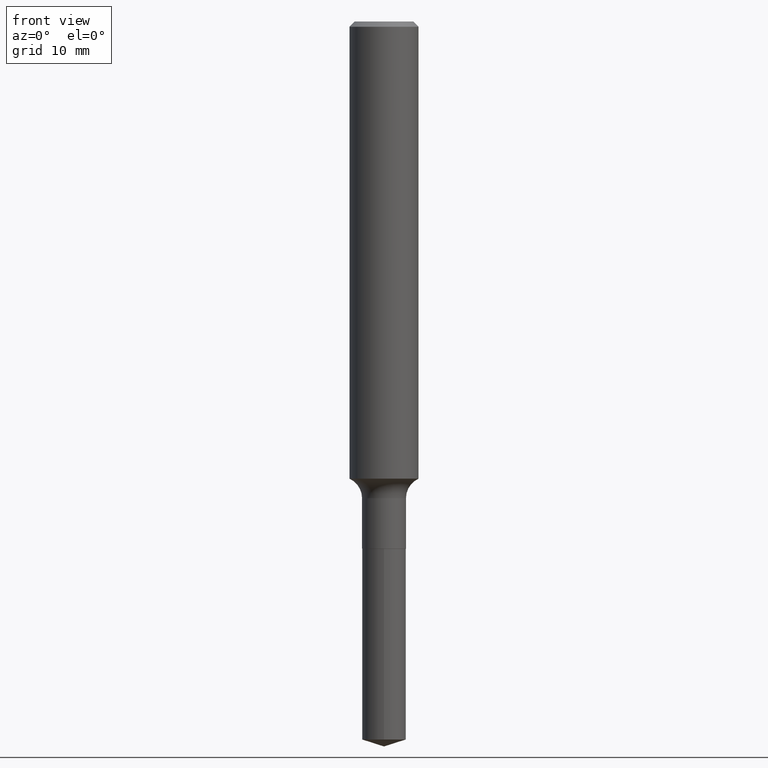
[diagram: clean part render]
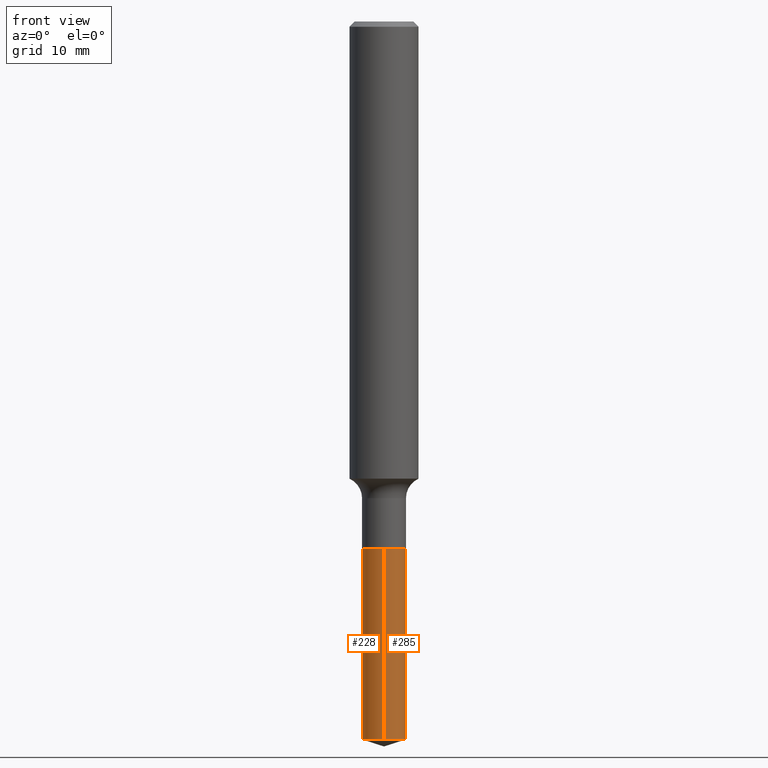
[diagram: same view with one multi-face feature highlighted, each face labeled with its STEP entity id]
A machine part, front view. The highlighted faces form ONE feature: a constant-radius fillet chain: 2 tangent blend faces with common blend radius 2.0193 mm. The faces share edges in the B-rep.
Their STEP definitions:
[1] entity #228 (Cylinder):
#10 = CIRCLE ( 'NONE', #396, 0.07950000000000000122 ) ;
#35 = LINE ( 'NONE', #180, #328 ) ;
#52 = VERTEX_POINT ( 'NONE', #106 ) ;
#61 = ORIENTED_EDGE ( 'NONE', *, *, #439, .T. ) ;
#101 = VERTEX_POINT ( 'NONE', #124 ) ;
#106 = CARTESIAN_POINT ( 'NONE',  ( -5.551455328760114122E-16, -0.07950000000000666256, -1.908999999999999808 ) ) ;
#124 = CARTESIAN_POINT ( 'NONE',  ( 5.648814749293430611E-16, 0.07949999999999091127, -2.599933746284121217 ) ) ;
#137 = VECTOR ( 'NONE', #311, 39.37007874015748143 ) ;
#160 = CARTESIAN_POINT ( 'NONE',  ( 5.648814749293261992E-16, 0.07949999999999333988, -1.909000000000000252 ) ) ;
#163 = EDGE_CURVE ( 'NONE', #101, #467, #345, .T. ) ;
#180 = CARTESIAN_POINT ( 'NONE',  ( -5.551455328760114122E-16, -0.07950000000000666256, -1.908999999999999808 ) ) ;
#210 = CARTESIAN_POINT ( 'NONE',  ( 6.358004696321542877E-29, -9.077694879767091287E-15, -2.599933746284120328 ) ) ;
#222 = ORIENTED_EDGE ( 'NONE', *, *, #344, .T. ) ;
#228 = ADVANCED_FACE ( 'NONE', ( #277 ), #426, .T. ) ;
#243 = DIRECTION ( 'NONE',  ( -2.445393287563249425E-29, 3.491589485807941180E-15, 1.000000000000000000 ) ) ;
#244 = DIRECTION ( 'NONE',  ( -2.445393287563249425E-29, 3.491589485807941180E-15, 1.000000000000000000 ) ) ;
#265 = ORIENTED_EDGE ( 'NONE', *, *, #293, .F. ) ;
#277 = FACE_OUTER_BOUND ( 'NONE', #446, .T. ) ;
#293 = EDGE_CURVE ( 'NONE', #467, #52, #10, .T. ) ;
#307 = DIRECTION ( 'NONE',  ( -2.445393287563249425E-29, 3.491589485807941180E-15, 1.000000000000000000 ) ) ;
#311 = DIRECTION ( 'NONE',  ( -2.445393287563249425E-29, 3.491589485807941180E-15, 1.000000000000000000 ) ) ;
#327 = DIRECTION ( 'NONE',  ( -6.982962677686265922E-15, -1.000000000000000000, 3.436286784483350005E-15 ) ) ;
#328 = VECTOR ( 'NONE', #411, 39.37007874015748143 ) ;
#344 = EDGE_CURVE ( 'NONE', #101, #359, #461, .T. ) ;
#345 = LINE ( 'NONE', #160, #137 ) ;
#359 = VERTEX_POINT ( 'NONE', #466 ) ;
#375 = CARTESIAN_POINT ( 'NONE',  ( 4.668399951007425925E-29, -6.665237875851565683E-15, -1.909000000000000030 ) ) ;
#380 = AXIS2_PLACEMENT_3D ( 'NONE', #375, #307, #418 ) ;
#389 = DIRECTION ( 'NONE',  ( -6.982962677686265922E-15, -1.000000000000000000, 6.872573568966700010E-15 ) ) ;
#393 = CARTESIAN_POINT ( 'NONE',  ( 4.668399951007425925E-29, -6.665237875851565683E-15, -1.909000000000000030 ) ) ;
#396 = AXIS2_PLACEMENT_3D ( 'NONE', #393, #244, #327 ) ;
#398 = ORIENTED_EDGE ( 'NONE', *, *, #163, .F. ) ;
#403 = CARTESIAN_POINT ( 'NONE',  ( 5.648814749293433570E-16, 0.07949999999999333988, -1.909000000000000252 ) ) ;
#411 = DIRECTION ( 'NONE',  ( -2.445393287563249425E-29, 3.491589485807941180E-15, 1.000000000000000000 ) ) ;
#418 = DIRECTION ( 'NONE',  ( -6.982962677686265922E-15, -1.000000000000000000, 3.436286784483350005E-15 ) ) ;
#426 = CYLINDRICAL_SURFACE ( 'NONE', #380, 0.07950000000000000122 ) ;
#439 = EDGE_CURVE ( 'NONE', #359, #52, #35, .T. ) ;
#446 = EDGE_LOOP ( 'NONE', ( #398, #222, #61, #265 ) ) ;
#461 = CIRCLE ( 'NONE', #477, 0.07950000000000000122 ) ;
#466 = CARTESIAN_POINT ( 'NONE',  ( -5.551455328759945503E-16, -0.07950000000000907729, -2.599933746284119884 ) ) ;
#467 = VERTEX_POINT ( 'NONE', #403 ) ;
#477 = AXIS2_PLACEMENT_3D ( 'NONE', #210, #243, #389 ) ;
[2] entity #285 (Cylinder):
#26 = EDGE_LOOP ( 'NONE', ( #430, #216, #320, #37 ) ) ;
#35 = LINE ( 'NONE', #180, #328 ) ;
#37 = ORIENTED_EDGE ( 'NONE', *, *, #439, .F. ) ;
#52 = VERTEX_POINT ( 'NONE', #106 ) ;
#60 = FACE_OUTER_BOUND ( 'NONE', #26, .T. ) ;
#88 = AXIS2_PLACEMENT_3D ( 'NONE', #131, #246, #90 ) ;
#90 = DIRECTION ( 'NONE',  ( -6.982962677686265922E-15, -1.000000000000000000, 3.436286784483350005E-15 ) ) ;
#101 = VERTEX_POINT ( 'NONE', #124 ) ;
#106 = CARTESIAN_POINT ( 'NONE',  ( -5.551455328760114122E-16, -0.07950000000000666256, -1.908999999999999808 ) ) ;
#123 = CIRCLE ( 'NONE', #234, 0.07950000000000000122 ) ;
#124 = CARTESIAN_POINT ( 'NONE',  ( 5.648814749293430611E-16, 0.07949999999999091127, -2.599933746284121217 ) ) ;
#125 = DIRECTION ( 'NONE',  ( -2.445393287563249425E-29, 3.491589485807941180E-15, 1.000000000000000000 ) ) ;
#131 = CARTESIAN_POINT ( 'NONE',  ( 4.668399951007425925E-29, -6.665237875851565683E-15, -1.909000000000000030 ) ) ;
#137 = VECTOR ( 'NONE', #311, 39.37007874015748143 ) ;
#160 = CARTESIAN_POINT ( 'NONE',  ( 5.648814749293261992E-16, 0.07949999999999333988, -1.909000000000000252 ) ) ;
#163 = EDGE_CURVE ( 'NONE', #101, #467, #345, .T. ) ;
#180 = CARTESIAN_POINT ( 'NONE',  ( -5.551455328760114122E-16, -0.07950000000000666256, -1.908999999999999808 ) ) ;
#207 = EDGE_CURVE ( 'NONE', #52, #467, #343, .T. ) ;
#216 = ORIENTED_EDGE ( 'NONE', *, *, #163, .T. ) ;
#234 = AXIS2_PLACEMENT_3D ( 'NONE', #291, #280, #470 ) ;
#246 = DIRECTION ( 'NONE',  ( -2.445393287563249425E-29, 3.491589485807941180E-15, 1.000000000000000000 ) ) ;
#269 = EDGE_CURVE ( 'NONE', #359, #101, #123, .T. ) ;
#275 = CARTESIAN_POINT ( 'NONE',  ( 4.668399951007425925E-29, -6.665237875851565683E-15, -1.909000000000000030 ) ) ;
#280 = DIRECTION ( 'NONE',  ( -2.445393287563249425E-29, 3.491589485807941180E-15, 1.000000000000000000 ) ) ;
#285 = ADVANCED_FACE ( 'NONE', ( #60 ), #399, .T. ) ;
#291 = CARTESIAN_POINT ( 'NONE',  ( 6.358004696321542877E-29, -9.077694879767091287E-15, -2.599933746284120328 ) ) ;
#311 = DIRECTION ( 'NONE',  ( -2.445393287563249425E-29, 3.491589485807941180E-15, 1.000000000000000000 ) ) ;
#317 = AXIS2_PLACEMENT_3D ( 'NONE', #275, #125, #425 ) ;
#320 = ORIENTED_EDGE ( 'NONE', *, *, #207, .F. ) ;
#328 = VECTOR ( 'NONE', #411, 39.37007874015748143 ) ;
#343 = CIRCLE ( 'NONE', #317, 0.07950000000000000122 ) ;
#345 = LINE ( 'NONE', #160, #137 ) ;
#359 = VERTEX_POINT ( 'NONE', #466 ) ;
#399 = CYLINDRICAL_SURFACE ( 'NONE', #88, 0.07950000000000000122 ) ;
#403 = CARTESIAN_POINT ( 'NONE',  ( 5.648814749293433570E-16, 0.07949999999999333988, -1.909000000000000252 ) ) ;
#411 = DIRECTION ( 'NONE',  ( -2.445393287563249425E-29, 3.491589485807941180E-15, 1.000000000000000000 ) ) ;
#425 = DIRECTION ( 'NONE',  ( -6.982962677686265922E-15, -1.000000000000000000, 3.436286784483350005E-15 ) ) ;
#430 = ORIENTED_EDGE ( 'NONE', *, *, #269, .T. ) ;
#439 = EDGE_CURVE ( 'NONE', #359, #52, #35, .T. ) ;
#466 = CARTESIAN_POINT ( 'NONE',  ( -5.551455328759945503E-16, -0.07950000000000907729, -2.599933746284119884 ) ) ;
#467 = VERTEX_POINT ( 'NONE', #403 ) ;
#470 = DIRECTION ( 'NONE',  ( -6.982962677686265922E-15, -1.000000000000000000, 6.872573568966700010E-15 ) ) ;